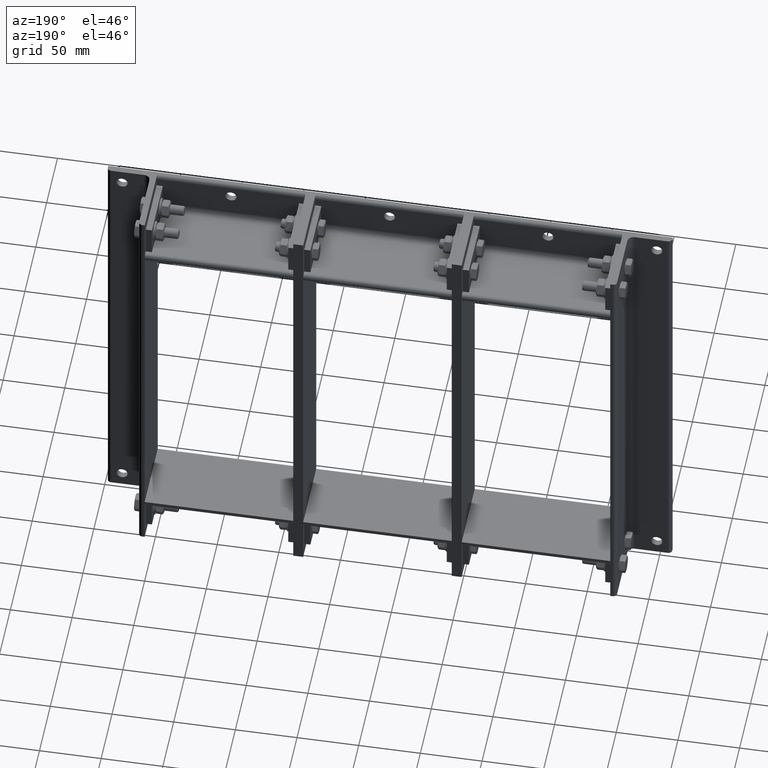
[diagram: clean part render]
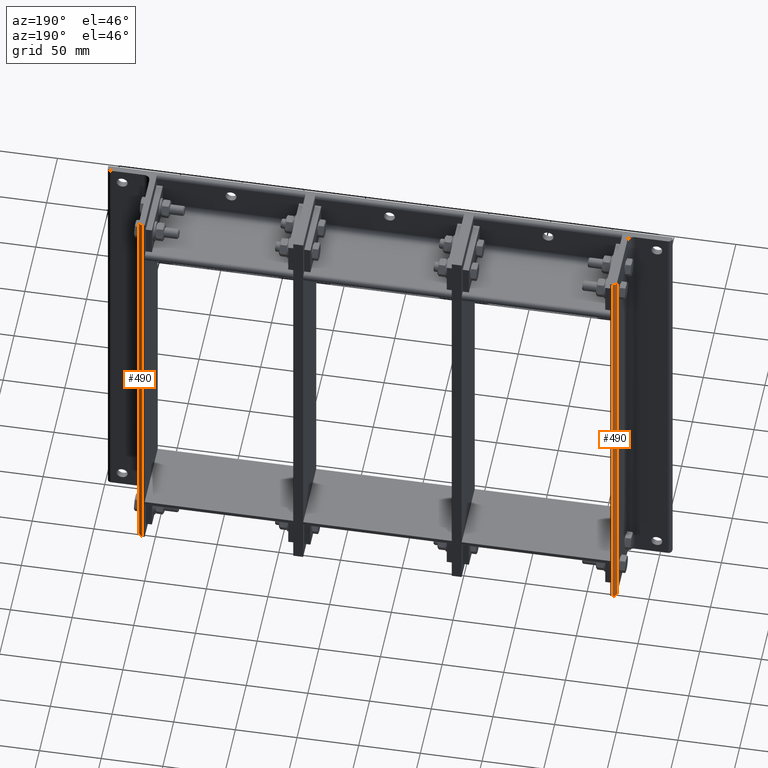
[diagram: same view with one multi-face feature highlighted, each face labeled with its STEP entity id]
A machine part, auxiliary view. The highlighted faces form ONE feature: a constant-radius fillet chain: 2 tangent blend faces with common blend radius 3 mm. The faces share edges in the B-rep.
Their STEP definitions:
[1] entity #490 (Cylinder):
#423=CARTESIAN_POINT('',(1.999999999999982,60.0,0.0));
#424=VERTEX_POINT('',#423);
#431=CARTESIAN_POINT('',(4.999999999999982,57.0,0.0));
#432=VERTEX_POINT('',#431);
#433=CARTESIAN_POINT('',(1.999999999999982,57.0,0.0));
#434=DIRECTION('',(0.0,0.0,1.0));
#435=DIRECTION('',(0.707106781186549,0.707106781186546,0.0));
#436=AXIS2_PLACEMENT_3D('',#433,#434,#435);
#437=CIRCLE('',#436,3.0);
#438=EDGE_CURVE('',#432,#424,#437,.T.);
#459=CARTESIAN_POINT('',(1.999999999999982,57.0,0.0));
#460=DIRECTION('',(0.0,0.0,1.0));
#461=DIRECTION('',(0.707106781186549,0.707106781186546,0.0));
#462=AXIS2_PLACEMENT_3D('',#459,#460,#461);
#463=CYLINDRICAL_SURFACE('',#462,3.0);
#464=CARTESIAN_POINT('',(1.999999999999982,60.0,358.0));
#465=VERTEX_POINT('',#464);
#466=CARTESIAN_POINT('',(4.999999999999982,57.0,358.0));
#467=VERTEX_POINT('',#466);
#468=CARTESIAN_POINT('',(1.999999999999982,57.0,358.0));
#469=DIRECTION('',(0.0,0.0,-1.0));
#470=DIRECTION('',(0.707106781186549,0.707106781186546,0.0));
#471=AXIS2_PLACEMENT_3D('',#468,#469,#470);
#472=CIRCLE('',#471,3.0);
#473=EDGE_CURVE('',#465,#467,#472,.T.);
#474=ORIENTED_EDGE('',*,*,#473,.T.);
#475=CARTESIAN_POINT('',(4.999999999999982,57.0,358.0));
#476=DIRECTION('',(0.0,0.0,-1.0));
#477=VECTOR('',#476,358.0);
#478=LINE('',#475,#477);
#479=EDGE_CURVE('',#467,#432,#478,.T.);
#480=ORIENTED_EDGE('',*,*,#479,.T.);
#481=ORIENTED_EDGE('',*,*,#438,.T.);
#482=CARTESIAN_POINT('',(1.999999999999982,60.0,0.0));
#483=DIRECTION('',(0.0,0.0,1.0));
#484=VECTOR('',#483,358.0);
#485=LINE('',#482,#484);
#486=EDGE_CURVE('',#424,#465,#485,.T.);
#487=ORIENTED_EDGE('',*,*,#486,.T.);
#488=EDGE_LOOP('',(#474,#480,#481,#487));
#489=FACE_OUTER_BOUND('',#488,.T.);
#490=ADVANCED_FACE('',(#489),#463,.T.);
[2] entity #490 (Cylinder):
#423=CARTESIAN_POINT('',(1.999999999999982,60.0,0.0));
#424=VERTEX_POINT('',#423);
#431=CARTESIAN_POINT('',(4.999999999999982,57.0,0.0));
#432=VERTEX_POINT('',#431);
#433=CARTESIAN_POINT('',(1.999999999999982,57.0,0.0));
#434=DIRECTION('',(0.0,0.0,1.0));
#435=DIRECTION('',(0.707106781186549,0.707106781186546,0.0));
#436=AXIS2_PLACEMENT_3D('',#433,#434,#435);
#437=CIRCLE('',#436,3.0);
#438=EDGE_CURVE('',#432,#424,#437,.T.);
#459=CARTESIAN_POINT('',(1.999999999999982,57.0,0.0));
#460=DIRECTION('',(0.0,0.0,1.0));
#461=DIRECTION('',(0.707106781186549,0.707106781186546,0.0));
#462=AXIS2_PLACEMENT_3D('',#459,#460,#461);
#463=CYLINDRICAL_SURFACE('',#462,3.0);
#464=CARTESIAN_POINT('',(1.999999999999982,60.0,358.0));
#465=VERTEX_POINT('',#464);
#466=CARTESIAN_POINT('',(4.999999999999982,57.0,358.0));
#467=VERTEX_POINT('',#466);
#468=CARTESIAN_POINT('',(1.999999999999982,57.0,358.0));
#469=DIRECTION('',(0.0,0.0,-1.0));
#470=DIRECTION('',(0.707106781186549,0.707106781186546,0.0));
#471=AXIS2_PLACEMENT_3D('',#468,#469,#470);
#472=CIRCLE('',#471,3.0);
#473=EDGE_CURVE('',#465,#467,#472,.T.);
#474=ORIENTED_EDGE('',*,*,#473,.T.);
#475=CARTESIAN_POINT('',(4.999999999999982,57.0,358.0));
#476=DIRECTION('',(0.0,0.0,-1.0));
#477=VECTOR('',#476,358.0);
#478=LINE('',#475,#477);
#479=EDGE_CURVE('',#467,#432,#478,.T.);
#480=ORIENTED_EDGE('',*,*,#479,.T.);
#481=ORIENTED_EDGE('',*,*,#438,.T.);
#482=CARTESIAN_POINT('',(1.999999999999982,60.0,0.0));
#483=DIRECTION('',(0.0,0.0,1.0));
#484=VECTOR('',#483,358.0);
#485=LINE('',#482,#484);
#486=EDGE_CURVE('',#424,#465,#485,.T.);
#487=ORIENTED_EDGE('',*,*,#486,.T.);
#488=EDGE_LOOP('',(#474,#480,#481,#487));
#489=FACE_OUTER_BOUND('',#488,.T.);
#490=ADVANCED_FACE('',(#489),#463,.T.);